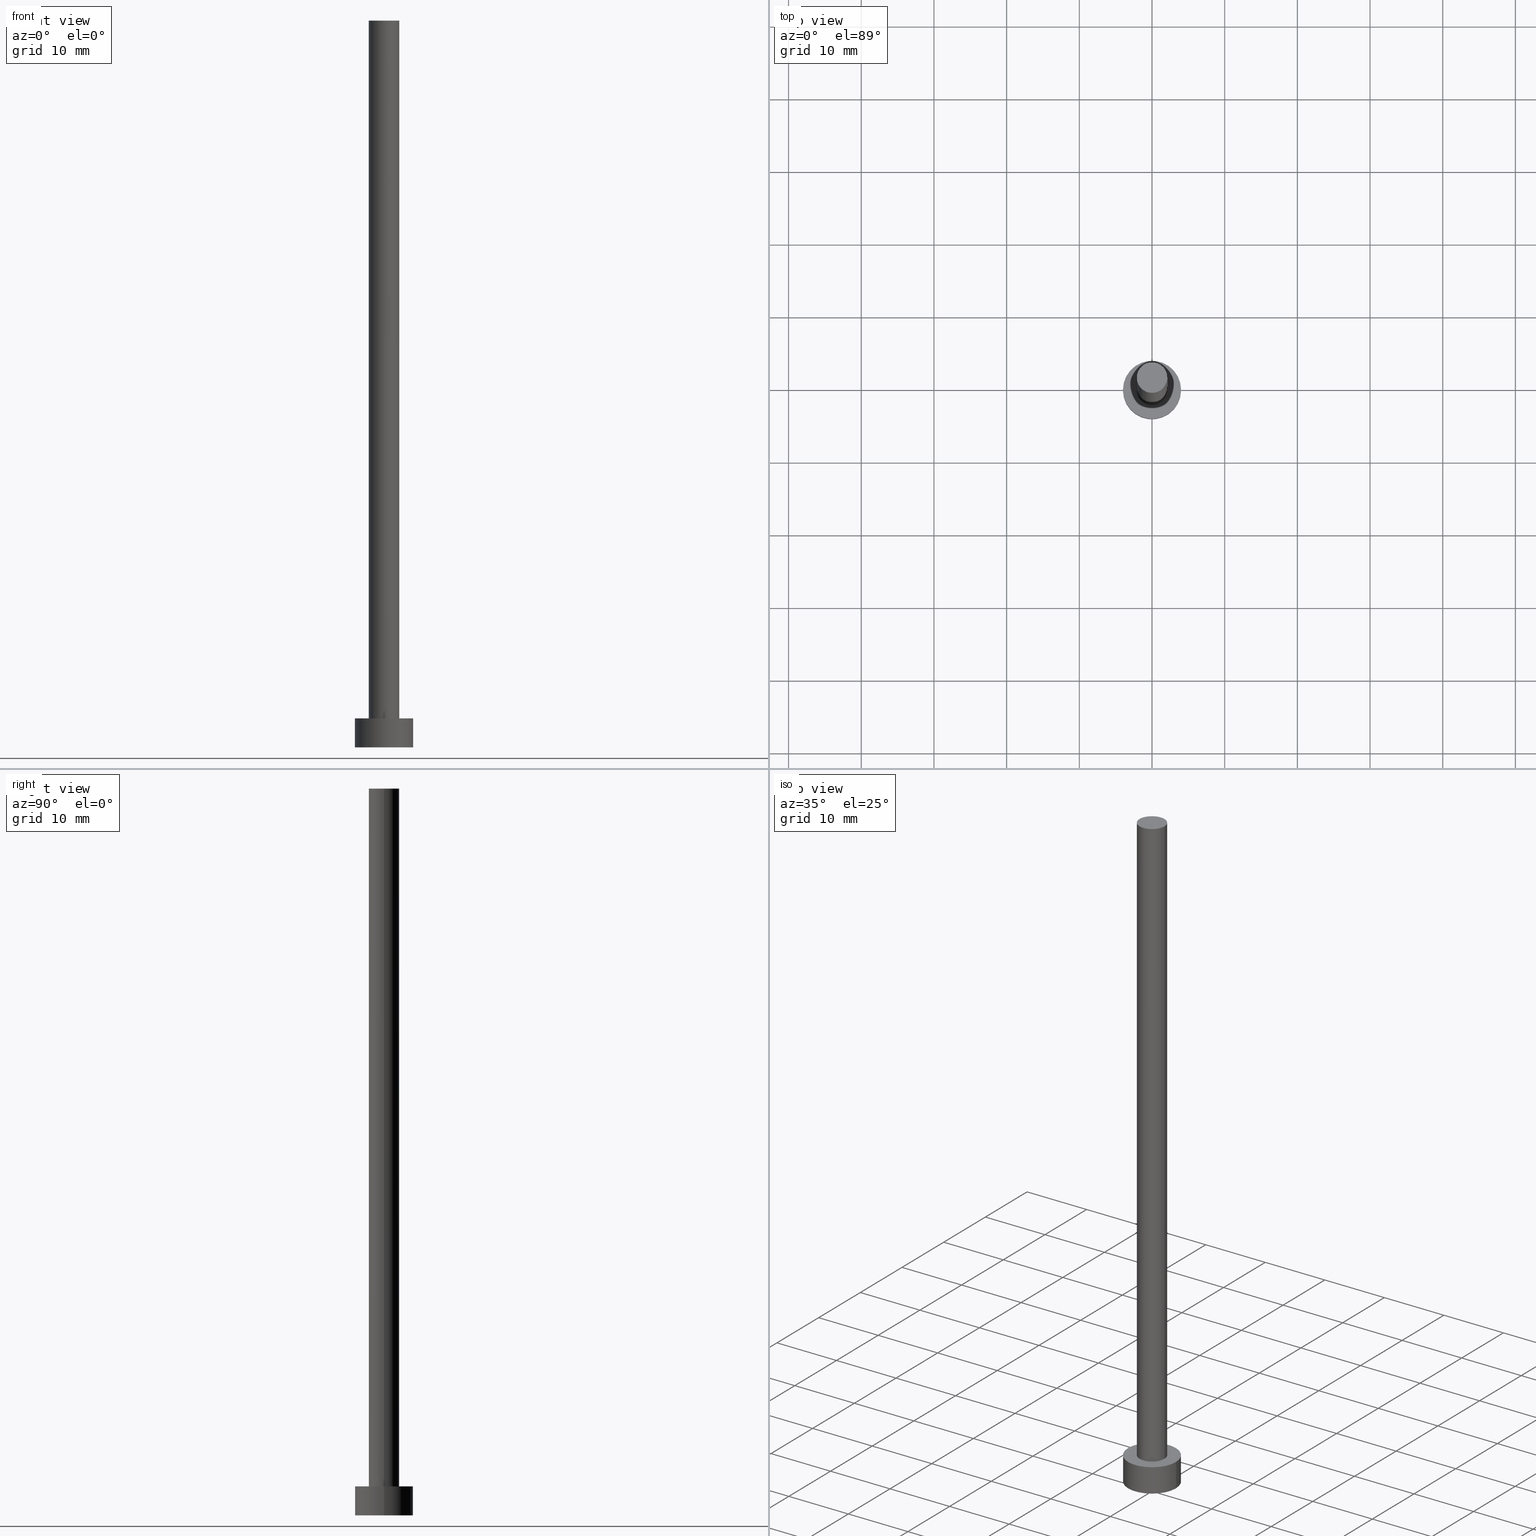
[diagram: canonical four-view strip — front | top / right | iso, engineering-drawing reading convention]
A machine part, canonical four-view strip (front | top / right | iso — engineering-drawing reading convention). The complete STEP part file that produces these views, byte-faithful:
ISO-10303-21;
HEADER;
FILE_DESCRIPTION (( 'STEP AP203' ),
    '1' );
FILE_NAME ('5a4d.STEP',
    '2023-02-13T16:35:15',
    ( '' ),
    ( '' ),
    'SwSTEP 2.0',
    'SolidWorks 2019',
    '' );
FILE_SCHEMA (( 'CONFIG_CONTROL_DESIGN' ));
ENDSEC;

DATA;
#1 = CARTESIAN_POINT ( 'NONE',  ( 0.000000000000000000, 0.000000000000000000, 100.0000000000000000 ) ) ;
#2 = EDGE_CURVE ( 'NONE', #116, #146, #160, .T. ) ;
#3 = APPROVAL_ROLE ( '' ) ;
#4 = VERTEX_POINT ( 'NONE', #62 ) ;
#5 = SECURITY_CLASSIFICATION_LEVEL ( 'unclassified' ) ;
#6 = VERTEX_POINT ( 'NONE', #16 ) ;
#7 = PERSON_AND_ORGANIZATION ( #94, #170 ) ;
#8 = ADVANCED_FACE ( 'NONE', ( #119 ), #103, .T. ) ;
#9 = ORIENTED_EDGE ( 'NONE', *, *, #139, .T. ) ;
#10 = UNCERTAINTY_MEASURE_WITH_UNIT (LENGTH_MEASURE( 1.000000000000000082E-05 ), #111, 'distance_accuracy_value', 'NONE');
#11 = AXIS2_PLACEMENT_3D ( 'NONE', #151, #246, #188 ) ;
#12 = ORIENTED_EDGE ( 'NONE', *, *, #145, .F. ) ;
#13 = APPROVAL_STATUS ( 'not_yet_approved' ) ;
#14 = CARTESIAN_POINT ( 'NONE',  ( 4.000000000000000000, 4.898587196589412829E-16, 4.000000000000000000 ) ) ;
#15 = CIRCLE ( 'NONE', #27, 2.100000000000000089 ) ;
#16 = CARTESIAN_POINT ( 'NONE',  ( 2.100000000000000089, 2.571758278209441957E-16, 100.0000000000000000 ) ) ;
#17 = ADVANCED_FACE ( 'NONE', ( #175 ), #228, .T. ) ;
#18 = DIRECTION ( 'NONE',  ( -0.000000000000000000, -0.000000000000000000, -1.000000000000000000 ) ) ;
#19 = AXIS2_PLACEMENT_3D ( 'NONE', #67, #195, #26 ) ;
#20 = CARTESIAN_POINT ( 'NONE',  ( -4.000000000000000000, 0.000000000000000000, 4.000000000000000000 ) ) ;
#21 = EDGE_CURVE ( 'NONE', #133, #4, #15, .T. ) ;
#22 = DIRECTION ( 'NONE',  ( -0.000000000000000000, -0.000000000000000000, -1.000000000000000000 ) ) ;
#23 = CC_DESIGN_PERSON_AND_ORGANIZATION_ASSIGNMENT ( #46, #43, ( #198 ) ) ;
#24 = DIRECTION ( 'NONE',  ( 1.000000000000000000, 0.000000000000000000, 0.000000000000000000 ) ) ;
#25 = EDGE_CURVE ( 'NONE', #6, #4, #172, .T. ) ;
#26 = DIRECTION ( 'NONE',  ( 1.000000000000000000, 0.000000000000000000, -0.000000000000000000 ) ) ;
#27 = AXIS2_PLACEMENT_3D ( 'NONE', #132, #100, #184 ) ;
#28 =( NAMED_UNIT ( * ) SI_UNIT ( $, .STERADIAN. ) SOLID_ANGLE_UNIT ( ) );
#29 = AXIS2_PLACEMENT_3D ( 'NONE', #142, #123, #234 ) ;
#30 = DIRECTION ( 'NONE',  ( 1.000000000000000000, 0.000000000000000000, 0.000000000000000000 ) ) ;
#31 = EDGE_CURVE ( 'NONE', #146, #116, #45, .T. ) ;
#32 = ORIENTED_EDGE ( 'NONE', *, *, #57, .T. ) ;
#33 = ORIENTED_EDGE ( 'NONE', *, *, #65, .F. ) ;
#34 = COORDINATED_UNIVERSAL_TIME_OFFSET ( 1, 0, .AHEAD. ) ;
#35 = EDGE_LOOP ( 'NONE', ( #91, #135, #40, #33 ) ) ;
#36 = VERTEX_POINT ( 'NONE', #20 ) ;
#37 = PLANE ( 'NONE',  #66 ) ;
#38 = CARTESIAN_POINT ( 'NONE',  ( 0.000000000000000000, 0.000000000000000000, 4.000000000000000000 ) ) ;
#39 = DIRECTION ( 'NONE',  ( -1.000000000000000000, 0.000000000000000000, 0.000000000000000000 ) ) ;
#40 = ORIENTED_EDGE ( 'NONE', *, *, #2, .T. ) ;
#41 = LINE ( 'NONE', #105, #207 ) ;
#42 = DIRECTION ( 'NONE',  ( -1.000000000000000000, 0.000000000000000000, 0.000000000000000000 ) ) ;
#43 = PERSON_AND_ORGANIZATION_ROLE ( 'design_owner' ) ;
#44 = CYLINDRICAL_SURFACE ( 'NONE', #204, 2.100000000000000089 ) ;
#45 = CIRCLE ( 'NONE', #104, 4.000000000000000000 ) ;
#46 = PERSON_AND_ORGANIZATION ( #94, #170 ) ;
#47 = LOCAL_TIME ( 17, 35, 15.00000000000000000, #242 ) ;
#48 = APPROVAL_STATUS ( 'not_yet_approved' ) ;
#49 = AXIS2_PLACEMENT_3D ( 'NONE', #59, #136, #39 ) ;
#50 = PERSON_AND_ORGANIZATION_ROLE ( 'design_supplier' ) ;
#51 = PERSON_AND_ORGANIZATION_ROLE ( 'creator' ) ;
#52 = ORIENTED_EDGE ( 'NONE', *, *, #25, .F. ) ;
#53 = VECTOR ( 'NONE', #18, 1000.000000000000000 ) ;
#54 = ORIENTED_EDGE ( 'NONE', *, *, #21, .F. ) ;
#55 = ORIENTED_EDGE ( 'NONE', *, *, #25, .T. ) ;
#56 = PRODUCT_DEFINITION_SHAPE ( 'NONE', 'NONE',  #225 ) ;
#57 = EDGE_CURVE ( 'NONE', #6, #129, #235, .T. ) ;
#58 = DIRECTION ( 'NONE',  ( -0.000000000000000000, -0.000000000000000000, -1.000000000000000000 ) ) ;
#59 = CARTESIAN_POINT ( 'NONE',  ( 0.000000000000000000, 0.000000000000000000, 4.000000000000000000 ) ) ;
#60 = AXIS2_PLACEMENT_3D ( 'NONE', #109, #180, #42 ) ;
#61 = CC_DESIGN_DATE_AND_TIME_ASSIGNMENT ( #75, #92, ( #110 ) ) ;
#62 = CARTESIAN_POINT ( 'NONE',  ( 2.100000000000000089, 2.571758278209441957E-16, 4.000000000000000000 ) ) ;
#63 = DATE_AND_TIME ( #108, #236 ) ;
#64 = CLOSED_SHELL ( 'NONE', ( #177, #17, #8, #192, #217, #185, #164 ) ) ;
#65 = EDGE_CURVE ( 'NONE', #36, #146, #78, .T. ) ;
#66 = AXIS2_PLACEMENT_3D ( 'NONE', #76, #117, #186 ) ;
#67 = CARTESIAN_POINT ( 'NONE',  ( 0.000000000000000000, 0.000000000000000000, 0.000000000000000000 ) ) ;
#68 = FACE_BOUND ( 'NONE', #224, .T. ) ;
#69 = AXIS2_PLACEMENT_3D ( 'NONE', #38, #58, #212 ) ;
#70 = APPLICATION_PROTOCOL_DEFINITION ( 'international standard', 'config_control_design', 1994, #85 ) ;
#71 = ORIENTED_EDGE ( 'NONE', *, *, #2, .F. ) ;
#72 = ORIENTED_EDGE ( 'NONE', *, *, #154, .F. ) ;
#73 = EDGE_LOOP ( 'NONE', ( #169, #203 ) ) ;
#74 = PRODUCT_RELATED_PRODUCT_CATEGORY ( 'detail', '', ( #198 ) ) ;
#75 = DATE_AND_TIME ( #201, #47 ) ;
#76 = CARTESIAN_POINT ( 'NONE',  ( 0.000000000000000000, 0.000000000000000000, 100.0000000000000000 ) ) ;
#77 = CYLINDRICAL_SURFACE ( 'NONE', #60, 2.100000000000000089 ) ;
#78 = LINE ( 'NONE', #193, #53 ) ;
#79 = CARTESIAN_POINT ( 'NONE',  ( 4.000000000000000000, 4.898587196589412829E-16, 0.000000000000000000 ) ) ;
#80 = CARTESIAN_POINT ( 'NONE',  ( -2.100000000000000089, 0.000000000000000000, 100.0000000000000000 ) ) ;
#81 = CC_DESIGN_APPROVAL ( #99, ( #124 ) ) ;
#82 =( NAMED_UNIT ( * ) PLANE_ANGLE_UNIT ( ) SI_UNIT ( $, .RADIAN. ) );
#83 = CARTESIAN_POINT ( 'NONE',  ( 0.000000000000000000, 0.000000000000000000, 4.000000000000000000 ) ) ;
#84 = AXIS2_PLACEMENT_3D ( 'NONE', #213, #152, #208 ) ;
#85 = APPLICATION_CONTEXT ( 'configuration controlled 3d designs of mechanical parts and assemblies' ) ;
#86 = FACE_OUTER_BOUND ( 'NONE', #73, .T. ) ;
#87 = CARTESIAN_POINT ( 'NONE',  ( 0.000000000000000000, 0.000000000000000000, 0.000000000000000000 ) ) ;
#88 = CARTESIAN_POINT ( 'NONE',  ( 0.000000000000000000, 0.000000000000000000, 4.000000000000000000 ) ) ;
#89 = VECTOR ( 'NONE', #98, 1000.000000000000000 ) ;
#90 = CALENDAR_DATE ( 2023, 13, 2 ) ;
#91 = ORIENTED_EDGE ( 'NONE', *, *, #211, .F. ) ;
#92 = DATE_TIME_ROLE ( 'classification_date' ) ;
#93 = ORIENTED_EDGE ( 'NONE', *, *, #134, .F. ) ;
#94 = PERSON ( 'NEUR�EN�', 'NEUR�EN�', 'NEUR�EN�', ('NEUR�EN�'), ('NEUR�EN�'), ('NEUR�EN�') ) ;
#95 = DATE_AND_TIME ( #197, #189 ) ;
#96 = ORIENTED_EDGE ( 'NONE', *, *, #139, .F. ) ;
#97 = COORDINATED_UNIVERSAL_TIME_OFFSET ( 1, 0, .AHEAD. ) ;
#98 = DIRECTION ( 'NONE',  ( -0.000000000000000000, -0.000000000000000000, -1.000000000000000000 ) ) ;
#99 = APPROVAL ( #48, 'NEUR�EN�' ) ;
#100 = DIRECTION ( 'NONE',  ( 0.000000000000000000, 0.000000000000000000, 1.000000000000000000 ) ) ;
#101 = CIRCLE ( 'NONE', #29, 4.000000000000000000 ) ;
#102 = DIRECTION ( 'NONE',  ( 1.000000000000000000, 0.000000000000000000, 0.000000000000000000 ) ) ;
#103 = CYLINDRICAL_SURFACE ( 'NONE', #69, 4.000000000000000000 ) ;
#104 = AXIS2_PLACEMENT_3D ( 'NONE', #229, #118, #245 ) ;
#105 = CARTESIAN_POINT ( 'NONE',  ( -2.100000000000000089, 0.000000000000000000, 100.0000000000000000 ) ) ;
#106 = APPROVAL_PERSON_ORGANIZATION ( #252, #238, #219 ) ;
#107 = LOCAL_TIME ( 17, 35, 15.00000000000000000, #34 ) ;
#108 = CALENDAR_DATE ( 2023, 13, 2 ) ;
#109 = CARTESIAN_POINT ( 'NONE',  ( 0.000000000000000000, 0.000000000000000000, 100.0000000000000000 ) ) ;
#110 = SECURITY_CLASSIFICATION ( '', '', #5 ) ;
#111 =( LENGTH_UNIT ( ) NAMED_UNIT ( * ) SI_UNIT ( .MILLI., .METRE. ) );
#112 = ORIENTED_EDGE ( 'NONE', *, *, #21, .T. ) ;
#113 = DATE_AND_TIME ( #223, #107 ) ;
#114 = ORIENTED_EDGE ( 'NONE', *, *, #134, .T. ) ;
#115 =( GEOMETRIC_REPRESENTATION_CONTEXT ( 3 ) GLOBAL_UNCERTAINTY_ASSIGNED_CONTEXT ( ( #10 ) ) GLOBAL_UNIT_ASSIGNED_CONTEXT ( ( #111, #82, #28 ) ) REPRESENTATION_CONTEXT ( 'NONE', 'WORKASPACE' ) );
#116 = VERTEX_POINT ( 'NONE', #79 ) ;
#117 = DIRECTION ( 'NONE',  ( 0.000000000000000000, 0.000000000000000000, 1.000000000000000000 ) ) ;
#118 = DIRECTION ( 'NONE',  ( 0.000000000000000000, 0.000000000000000000, 1.000000000000000000 ) ) ;
#119 = FACE_OUTER_BOUND ( 'NONE', #155, .T. ) ;
#120 = CC_DESIGN_PERSON_AND_ORGANIZATION_ASSIGNMENT ( #205, #50, ( #124 ) ) ;
#121 = CARTESIAN_POINT ( 'NONE',  ( -2.100000000000000089, 0.000000000000000000, 4.000000000000000000 ) ) ;
#122 = COORDINATED_UNIVERSAL_TIME_OFFSET ( 1, 0, .AHEAD. ) ;
#123 = DIRECTION ( 'NONE',  ( 0.000000000000000000, 0.000000000000000000, 1.000000000000000000 ) ) ;
#124 = PRODUCT_DEFINITION_FORMATION_WITH_SPECIFIED_SOURCE ( 'LIBOVOLN�', '', #198, .NOT_KNOWN. ) ;
#125 = COORDINATED_UNIVERSAL_TIME_OFFSET ( 1, 0, .AHEAD. ) ;
#126 = APPLICATION_PROTOCOL_DEFINITION ( 'international standard', 'config_control_design', 1994, #168 ) ;
#127 = DATE_AND_TIME ( #90, #163 ) ;
#128 = CIRCLE ( 'NONE', #173, 2.100000000000000089 ) ;
#129 = VERTEX_POINT ( 'NONE', #80 ) ;
#130 = ORIENTED_EDGE ( 'NONE', *, *, #57, .F. ) ;
#131 = CC_DESIGN_APPROVAL ( #238, ( #225 ) ) ;
#132 = CARTESIAN_POINT ( 'NONE',  ( 0.000000000000000000, 0.000000000000000000, 4.000000000000000000 ) ) ;
#133 = VERTEX_POINT ( 'NONE', #121 ) ;
#134 = EDGE_CURVE ( 'NONE', #4, #133, #254, .T. ) ;
#135 = ORIENTED_EDGE ( 'NONE', *, *, #145, .T. ) ;
#136 = DIRECTION ( 'NONE',  ( -0.000000000000000000, -0.000000000000000000, -1.000000000000000000 ) ) ;
#137 = ORIENTED_EDGE ( 'NONE', *, *, #154, .T. ) ;
#138 = MANIFOLD_SOLID_BREP ( 'P�idat vysunut�m3', #64 ) ;
#139 = EDGE_CURVE ( 'NONE', #129, #133, #41, .T. ) ;
#140 = APPROVAL_PERSON_ORGANIZATION ( #150, #183, #3 ) ;
#141 = PLANE ( 'NONE',  #220 ) ;
#142 = CARTESIAN_POINT ( 'NONE',  ( 0.000000000000000000, 0.000000000000000000, 4.000000000000000000 ) ) ;
#143 = DIRECTION ( 'NONE',  ( 0.000000000000000000, 0.000000000000000000, 1.000000000000000000 ) ) ;
#144 = SHAPE_DEFINITION_REPRESENTATION ( #56, #190 ) ;
#145 = EDGE_CURVE ( 'NONE', #206, #116, #176, .T. ) ;
#146 = VERTEX_POINT ( 'NONE', #247 ) ;
#147 = APPROVAL_DATE_TIME ( #127, #183 ) ;
#148 = EDGE_LOOP ( 'NONE', ( #130, #55, #114, #96 ) ) ;
#149 = CC_DESIGN_PERSON_AND_ORGANIZATION_ASSIGNMENT ( #166, #167, ( #110 ) ) ;
#150 = PERSON_AND_ORGANIZATION ( #94, #170 ) ;
#151 = CARTESIAN_POINT ( 'NONE',  ( 0.000000000000000000, 0.000000000000000000, 100.0000000000000000 ) ) ;
#152 = DIRECTION ( 'NONE',  ( 0.000000000000000000, 0.000000000000000000, 1.000000000000000000 ) ) ;
#153 = CC_DESIGN_DATE_AND_TIME_ASSIGNMENT ( #95, #221, ( #225 ) ) ;
#154 = EDGE_CURVE ( 'NONE', #129, #6, #128, .T. ) ;
#155 = EDGE_LOOP ( 'NONE', ( #12, #181, #222, #226 ) ) ;
#156 = VECTOR ( 'NONE', #191, 1000.000000000000000 ) ;
#157 = CARTESIAN_POINT ( 'NONE',  ( 0.000000000000000000, 0.000000000000000000, 0.000000000000000000 ) ) ;
#158 = CARTESIAN_POINT ( 'NONE',  ( 0.000000000000000000, 0.000000000000000000, 100.0000000000000000 ) ) ;
#159 = APPROVAL_DATE_TIME ( #63, #238 ) ;
#160 = CIRCLE ( 'NONE', #210, 4.000000000000000000 ) ;
#161 = CARTESIAN_POINT ( 'NONE',  ( 4.000000000000000000, 4.898587196589412829E-16, 4.000000000000000000 ) ) ;
#162 = FACE_OUTER_BOUND ( 'NONE', #240, .T. ) ;
#163 = LOCAL_TIME ( 17, 35, 15.00000000000000000, #97 ) ;
#164 = ADVANCED_FACE ( 'NONE', ( #243 ), #37, .T. ) ;
#165 = DIRECTION ( 'NONE',  ( 1.000000000000000000, 0.000000000000000000, -0.000000000000000000 ) ) ;
#166 = PERSON_AND_ORGANIZATION ( #94, #170 ) ;
#167 = PERSON_AND_ORGANIZATION_ROLE ( 'classification_officer' ) ;
#168 = APPLICATION_CONTEXT ( 'configuration controlled 3d designs of mechanical parts and assemblies' ) ;
#169 = ORIENTED_EDGE ( 'NONE', *, *, #232, .T. ) ;
#170 = ORGANIZATION ( 'NEUR�EN�', 'NEUR�EN�', '' ) ;
#171 = DIRECTION ( 'NONE',  ( 1.000000000000000000, 0.000000000000000000, 0.000000000000000000 ) ) ;
#172 = LINE ( 'NONE', #214, #156 ) ;
#173 = AXIS2_PLACEMENT_3D ( 'NONE', #158, #230, #171 ) ;
#174 = EDGE_LOOP ( 'NONE', ( #137, #32 ) ) ;
#175 = FACE_OUTER_BOUND ( 'NONE', #35, .T. ) ;
#176 = LINE ( 'NONE', #14, #89 ) ;
#177 = ADVANCED_FACE ( 'NONE', ( #244 ), #77, .T. ) ;
#178 = PLANE ( 'NONE',  #19 ) ;
#179 = DIRECTION ( 'NONE',  ( 0.000000000000000000, 0.000000000000000000, 1.000000000000000000 ) ) ;
#180 = DIRECTION ( 'NONE',  ( -0.000000000000000000, -0.000000000000000000, -1.000000000000000000 ) ) ;
#181 = ORIENTED_EDGE ( 'NONE', *, *, #232, .F. ) ;
#182 = PERSON_AND_ORGANIZATION ( #94, #170 ) ;
#183 = APPROVAL ( #13, 'NEUR�EN�' ) ;
#184 = DIRECTION ( 'NONE',  ( 1.000000000000000000, 0.000000000000000000, 0.000000000000000000 ) ) ;
#185 = ADVANCED_FACE ( 'NONE', ( #194 ), #44, .T. ) ;
#186 = DIRECTION ( 'NONE',  ( 1.000000000000000000, 0.000000000000000000, -0.000000000000000000 ) ) ;
#187 = CC_DESIGN_PERSON_AND_ORGANIZATION_ASSIGNMENT ( #7, #51, ( #124 ) ) ;
#188 = DIRECTION ( 'NONE',  ( 1.000000000000000000, 0.000000000000000000, 0.000000000000000000 ) ) ;
#189 = LOCAL_TIME ( 17, 35, 15.00000000000000000, #125 ) ;
#190 = ADVANCED_BREP_SHAPE_REPRESENTATION ( '5a4d', ( #138, #249 ), #115 ) ;
#191 = DIRECTION ( 'NONE',  ( -0.000000000000000000, -0.000000000000000000, -1.000000000000000000 ) ) ;
#192 = ADVANCED_FACE ( 'NONE', ( #68, #86 ), #141, .T. ) ;
#193 = CARTESIAN_POINT ( 'NONE',  ( -4.000000000000000000, 0.000000000000000000, 4.000000000000000000 ) ) ;
#194 = FACE_OUTER_BOUND ( 'NONE', #237, .T. ) ;
#195 = DIRECTION ( 'NONE',  ( 0.000000000000000000, 0.000000000000000000, 1.000000000000000000 ) ) ;
#196 = CC_DESIGN_PERSON_AND_ORGANIZATION_ASSIGNMENT ( #215, #253, ( #225 ) ) ;
#197 = CALENDAR_DATE ( 2023, 13, 2 ) ;
#198 = PRODUCT ( '5a4d', '5a4d', '', ( #216 ) ) ;
#199 = APPROVAL_STATUS ( 'not_yet_approved' ) ;
#200 = CIRCLE ( 'NONE', #250, 4.000000000000000000 ) ;
#201 = CALENDAR_DATE ( 2023, 13, 2 ) ;
#202 = APPROVAL_ROLE ( '' ) ;
#203 = ORIENTED_EDGE ( 'NONE', *, *, #211, .T. ) ;
#204 = AXIS2_PLACEMENT_3D ( 'NONE', #1, #255, #231 ) ;
#205 = PERSON_AND_ORGANIZATION ( #94, #170 ) ;
#206 = VERTEX_POINT ( 'NONE', #161 ) ;
#207 = VECTOR ( 'NONE', #22, 1000.000000000000000 ) ;
#208 = DIRECTION ( 'NONE',  ( 1.000000000000000000, 0.000000000000000000, 0.000000000000000000 ) ) ;
#209 = DIRECTION ( 'NONE',  ( 0.000000000000000000, 0.000000000000000000, 1.000000000000000000 ) ) ;
#210 = AXIS2_PLACEMENT_3D ( 'NONE', #157, #209, #102 ) ;
#211 = EDGE_CURVE ( 'NONE', #206, #36, #101, .T. ) ;
#212 = DIRECTION ( 'NONE',  ( -1.000000000000000000, 0.000000000000000000, 0.000000000000000000 ) ) ;
#213 = CARTESIAN_POINT ( 'NONE',  ( 0.000000000000000000, 0.000000000000000000, 4.000000000000000000 ) ) ;
#214 = CARTESIAN_POINT ( 'NONE',  ( 2.100000000000000089, 2.571758278209441957E-16, 100.0000000000000000 ) ) ;
#215 = PERSON_AND_ORGANIZATION ( #94, #170 ) ;
#216 = MECHANICAL_CONTEXT ( 'NONE', #85, 'mechanical' ) ;
#217 = ADVANCED_FACE ( 'NONE', ( #162 ), #178, .F. ) ;
#218 = DIRECTION ( 'NONE',  ( 0.000000000000000000, 0.000000000000000000, 1.000000000000000000 ) ) ;
#219 = APPROVAL_ROLE ( '' ) ;
#220 = AXIS2_PLACEMENT_3D ( 'NONE', #88, #143, #165 ) ;
#221 = DATE_TIME_ROLE ( 'creation_date' ) ;
#222 = ORIENTED_EDGE ( 'NONE', *, *, #65, .T. ) ;
#223 = CALENDAR_DATE ( 2023, 13, 2 ) ;
#224 = EDGE_LOOP ( 'NONE', ( #54, #93 ) ) ;
#225 = PRODUCT_DEFINITION ( 'NEZN�M�', '', #124, #248 ) ;
#226 = ORIENTED_EDGE ( 'NONE', *, *, #31, .T. ) ;
#227 = ORIENTED_EDGE ( 'NONE', *, *, #31, .F. ) ;
#228 = CYLINDRICAL_SURFACE ( 'NONE', #49, 4.000000000000000000 ) ;
#229 = CARTESIAN_POINT ( 'NONE',  ( 0.000000000000000000, 0.000000000000000000, 0.000000000000000000 ) ) ;
#230 = DIRECTION ( 'NONE',  ( 0.000000000000000000, 0.000000000000000000, 1.000000000000000000 ) ) ;
#231 = DIRECTION ( 'NONE',  ( -1.000000000000000000, 0.000000000000000000, 0.000000000000000000 ) ) ;
#232 = EDGE_CURVE ( 'NONE', #36, #206, #200, .T. ) ;
#233 = APPROVAL_PERSON_ORGANIZATION ( #182, #99, #202 ) ;
#234 = DIRECTION ( 'NONE',  ( 1.000000000000000000, 0.000000000000000000, 0.000000000000000000 ) ) ;
#235 = CIRCLE ( 'NONE', #11, 2.100000000000000089 ) ;
#236 = LOCAL_TIME ( 17, 35, 15.00000000000000000, #122 ) ;
#237 = EDGE_LOOP ( 'NONE', ( #52, #72, #9, #112 ) ) ;
#238 = APPROVAL ( #199, 'NEUR�EN�' ) ;
#239 = APPROVAL_DATE_TIME ( #113, #99 ) ;
#240 = EDGE_LOOP ( 'NONE', ( #227, #71 ) ) ;
#241 = CC_DESIGN_APPROVAL ( #183, ( #110 ) ) ;
#242 = COORDINATED_UNIVERSAL_TIME_OFFSET ( 1, 0, .AHEAD. ) ;
#243 = FACE_OUTER_BOUND ( 'NONE', #174, .T. ) ;
#244 = FACE_OUTER_BOUND ( 'NONE', #148, .T. ) ;
#245 = DIRECTION ( 'NONE',  ( 1.000000000000000000, 0.000000000000000000, 0.000000000000000000 ) ) ;
#246 = DIRECTION ( 'NONE',  ( 0.000000000000000000, 0.000000000000000000, 1.000000000000000000 ) ) ;
#247 = CARTESIAN_POINT ( 'NONE',  ( -4.000000000000000000, 0.000000000000000000, 0.000000000000000000 ) ) ;
#248 = DESIGN_CONTEXT ( 'detailed design', #168, 'design' ) ;
#249 = AXIS2_PLACEMENT_3D ( 'NONE', #87, #218, #30 ) ;
#250 = AXIS2_PLACEMENT_3D ( 'NONE', #83, #179, #24 ) ;
#251 = CC_DESIGN_SECURITY_CLASSIFICATION ( #110, ( #124 ) ) ;
#252 = PERSON_AND_ORGANIZATION ( #94, #170 ) ;
#253 = PERSON_AND_ORGANIZATION_ROLE ( 'creator' ) ;
#254 = CIRCLE ( 'NONE', #84, 2.100000000000000089 ) ;
#255 = DIRECTION ( 'NONE',  ( -0.000000000000000000, -0.000000000000000000, -1.000000000000000000 ) ) ;
ENDSEC;
END-ISO-10303-21;
